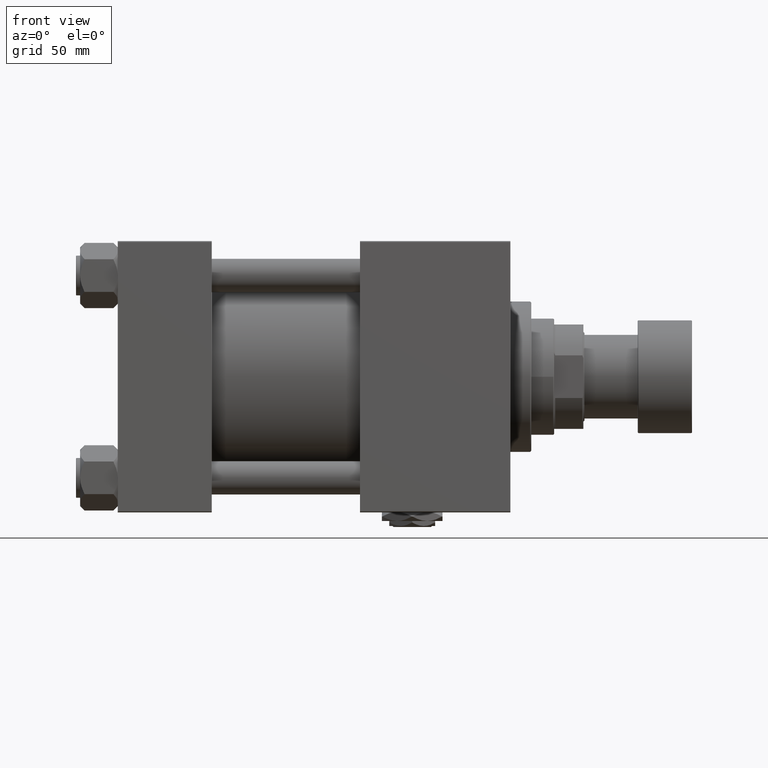
[diagram: clean part render]
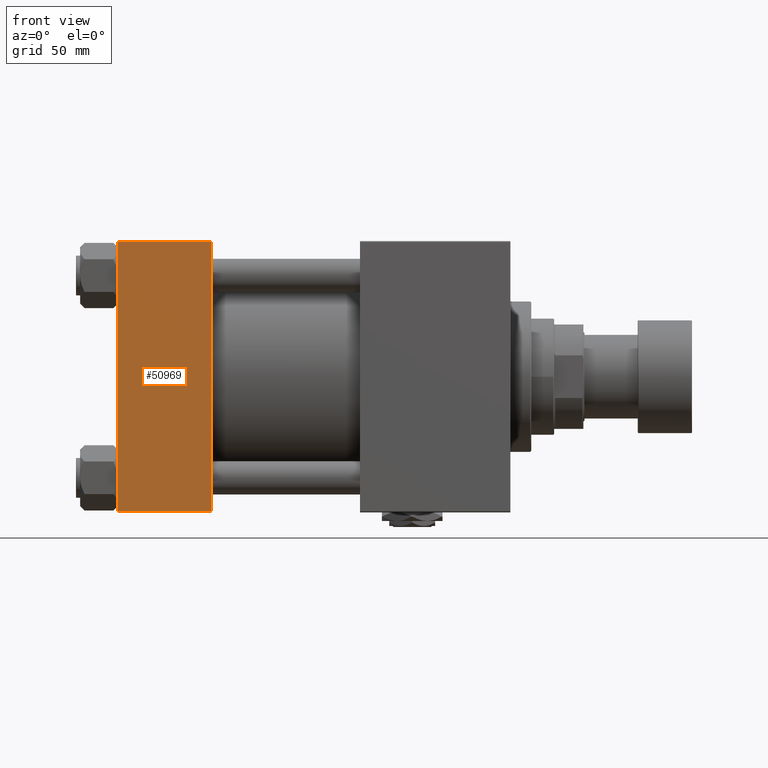
[diagram: same view with one face highlighted and labeled with its STEP entity id]
A machine part, front view. The second image highlights one B-rep face of the part: STEP entity #50969.
In plain terms, the highlighted planar face has unit normal (0, 1, 0).
Its self-contained STEP definition (entity closure, byte-faithful):
#2455 = EDGE_CURVE ( 'NONE', #30468, #11371, #52203, .T. ) ;
#2943 = LINE ( 'NONE', #19883, #26907 ) ;
#4010 = ORIENTED_EDGE ( 'NONE', *, *, #36506, .T. ) ;
#7790 = DIRECTION ( 'NONE',  ( 0.000000000000000000, 0.000000000000000000, -1.000000000000000000 ) ) ;
#11316 = DIRECTION ( 'NONE',  ( -0.000000000000000000, 1.000000000000000000, 0.000000000000000000 ) ) ;
#11371 = VERTEX_POINT ( 'NONE', #50767 ) ;
#11583 = PLANE ( 'NONE',  #12631 ) ;
#12228 = EDGE_LOOP ( 'NONE', ( #16318, #43138, #16470, #4010 ) ) ;
#12631 = AXIS2_PLACEMENT_3D ( 'NONE', #40539, #11316, #44823 ) ;
#15180 = LINE ( 'NONE', #39316, #15782 ) ;
#15782 = VECTOR ( 'NONE', #39577, 1000.000000000000000 ) ;
#16318 = ORIENTED_EDGE ( 'NONE', *, *, #17808, .T. ) ;
#16470 = ORIENTED_EDGE ( 'NONE', *, *, #39662, .F. ) ;
#17808 = EDGE_CURVE ( 'NONE', #52461, #30468, #31876, .T. ) ;
#19883 = CARTESIAN_POINT ( 'NONE',  ( 45.00000000000000000, -65.00000000000000000, 65.00000000000000000 ) ) ;
#23809 = CARTESIAN_POINT ( 'NONE',  ( 0.000000000000000000, -65.00000000000000000, 65.00000000000000000 ) ) ;
#26907 = VECTOR ( 'NONE', #7790, 1000.000000000000000 ) ;
#27649 = CARTESIAN_POINT ( 'NONE',  ( 0.000000000000000000, -65.00000000000000000, 64.50000000000000000 ) ) ;
#30468 = VERTEX_POINT ( 'NONE', #37540 ) ;
#31562 = CARTESIAN_POINT ( 'NONE',  ( 45.00000000000000000, -65.00000000000000000, -64.49999999999991473 ) ) ;
#31611 = VECTOR ( 'NONE', #35317, 1000.000000000000000 ) ;
#31876 = LINE ( 'NONE', #23809, #35827 ) ;
#31984 = FACE_OUTER_BOUND ( 'NONE', #12228, .T. ) ;
#35317 = DIRECTION ( 'NONE',  ( 1.000000000000000000, 0.000000000000000000, 0.000000000000000000 ) ) ;
#35827 = VECTOR ( 'NONE', #40165, 1000.000000000000000 ) ;
#36506 = EDGE_CURVE ( 'NONE', #51852, #52461, #15180, .T. ) ;
#37540 = CARTESIAN_POINT ( 'NONE',  ( 0.000000000000000000, -65.00000000000000000, -64.49999999999991473 ) ) ;
#39316 = CARTESIAN_POINT ( 'NONE',  ( 45.00000000000000000, -65.00000000000000000, 64.50000000000000000 ) ) ;
#39577 = DIRECTION ( 'NONE',  ( -1.000000000000000000, 0.000000000000000000, 0.000000000000000000 ) ) ;
#39662 = EDGE_CURVE ( 'NONE', #51852, #11371, #2943, .T. ) ;
#40165 = DIRECTION ( 'NONE',  ( 0.000000000000000000, 0.000000000000000000, -1.000000000000000000 ) ) ;
#40539 = CARTESIAN_POINT ( 'NONE',  ( 45.00000000000000000, -65.00000000000000000, 65.00000000000000000 ) ) ;
#43138 = ORIENTED_EDGE ( 'NONE', *, *, #2455, .T. ) ;
#43651 = CARTESIAN_POINT ( 'NONE',  ( 45.00000000000000000, -65.00000000000000000, 64.50000000000000000 ) ) ;
#44823 = DIRECTION ( 'NONE',  ( 0.000000000000000000, -0.000000000000000000, 1.000000000000000000 ) ) ;
#50767 = CARTESIAN_POINT ( 'NONE',  ( 45.00000000000000000, -65.00000000000000000, -64.49999999999991473 ) ) ;
#50969 = ADVANCED_FACE ( 'NONE', ( #31984 ), #11583, .F. ) ;
#51852 = VERTEX_POINT ( 'NONE', #43651 ) ;
#52203 = LINE ( 'NONE', #31562, #31611 ) ;
#52461 = VERTEX_POINT ( 'NONE', #27649 ) ;